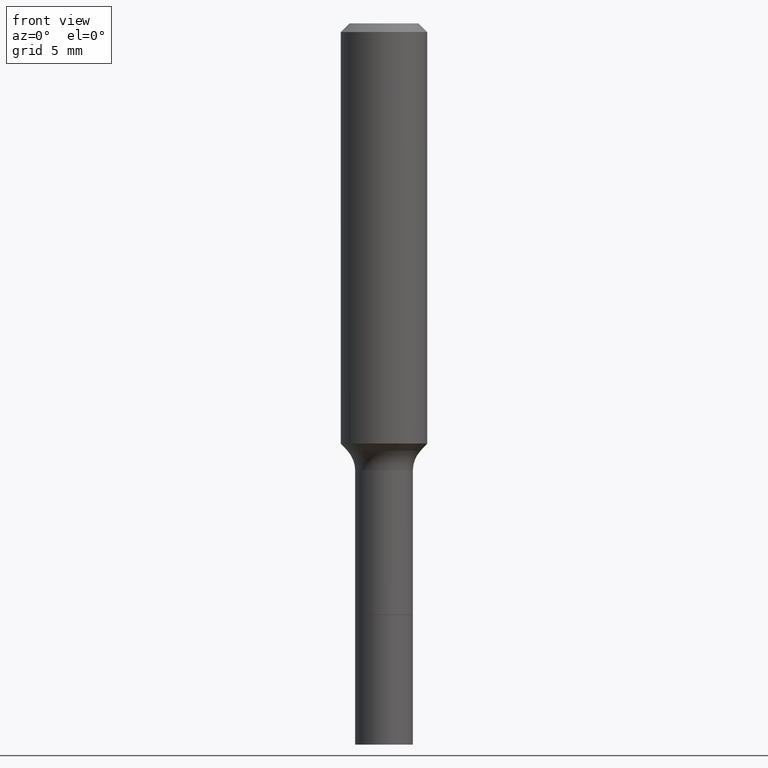
[diagram: clean part render]
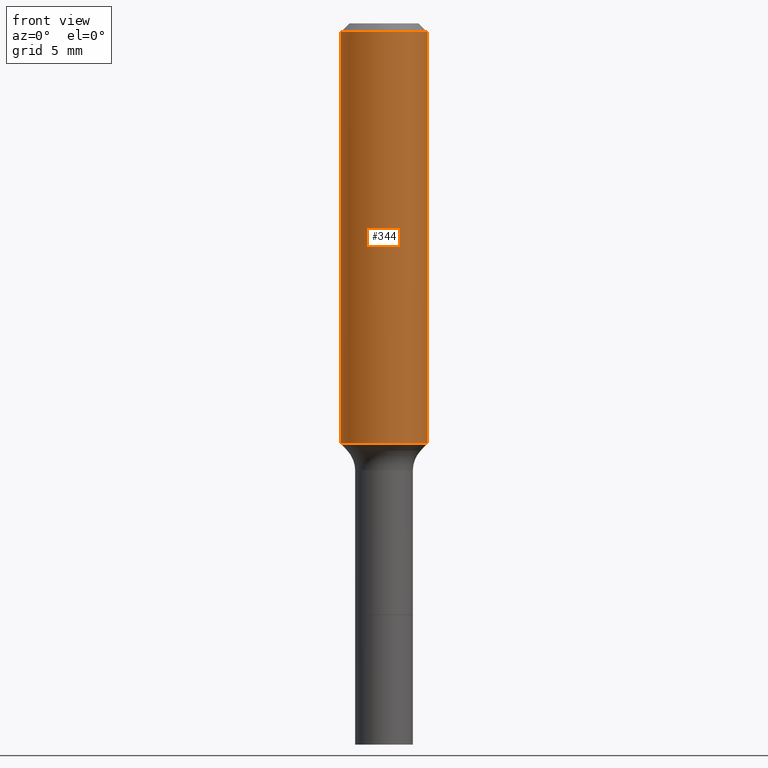
[diagram: same view with one face highlighted and labeled with its STEP entity id]
A machine part, front view. The second image highlights one B-rep face of the part: STEP entity #344.
In plain terms, the highlighted cylindrical surface (partial cylindrical patch) has radius 2.9997 mm, axis along (-0, 0, 1).
Its self-contained STEP definition (entity closure, byte-faithful):
#32 = DIRECTION ( 'NONE',  ( -2.445468806185136597E-29, 3.491481338843145583E-15, 1.000000000000000000 ) ) ;
#41 = DIRECTION ( 'NONE',  ( 1.000000000000000000, -6.982962677686266711E-15, 0.000000000000000000 ) ) ;
#46 = VERTEX_POINT ( 'NONE', #498 ) ;
#60 = CARTESIAN_POINT ( 'NONE',  ( 0.1181000000000000660, -8.246878922347485584E-16, 5.758764772215003944E-30 ) ) ;
#84 = CARTESIAN_POINT ( 'NONE',  ( 5.776197320209328408E-31, -8.246878922347560526E-17, -0.02362000000000014435 ) ) ;
#91 = DIRECTION ( 'NONE',  ( 1.000000000000000000, -6.982962677686269077E-15, 0.000000000000000000 ) ) ;
#112 = DIRECTION ( 'NONE',  ( -2.445468806185136877E-29, 3.491481338843145188E-15, 1.000000000000000000 ) ) ;
#120 = DIRECTION ( 'NONE',  ( -2.445468806185136597E-29, 3.491481338843145583E-15, 1.000000000000000000 ) ) ;
#144 = CARTESIAN_POINT ( 'NONE',  ( -0.1181000000000001354, -3.164843004536825664E-15, -1.146789453211333409 ) ) ;
#156 = EDGE_CURVE ( 'NONE', #243, #165, #292, .T. ) ;
#165 = VERTEX_POINT ( 'NONE', #454 ) ;
#170 = DIRECTION ( 'NONE',  ( -2.445468806185136597E-29, 3.491481338843145583E-15, 1.000000000000000000 ) ) ;
#223 = ORIENTED_EDGE ( 'NONE', *, *, #156, .F. ) ;
#234 = AXIS2_PLACEMENT_3D ( 'NONE', #84, #170, #41 ) ;
#243 = VERTEX_POINT ( 'NONE', #144 ) ;
#271 = CYLINDRICAL_SURFACE ( 'NONE', #418, 0.1181000000000000660 ) ;
#273 = LINE ( 'NONE', #60, #416 ) ;
#292 = LINE ( 'NONE', #452, #410 ) ;
#319 = CARTESIAN_POINT ( 'NONE',  ( 0.1180999999999999966, -9.071566814582237199E-16, -0.02362000000000014435 ) ) ;
#332 = DIRECTION ( 'NONE',  ( -2.445468806185136877E-29, 3.491481338843145188E-15, 1.000000000000000000 ) ) ;
#334 = EDGE_CURVE ( 'NONE', #46, #378, #273, .T. ) ;
#337 = AXIS2_PLACEMENT_3D ( 'NONE', #478, #120, #91 ) ;
#338 = FACE_OUTER_BOUND ( 'NONE', #395, .T. ) ;
#344 = ADVANCED_FACE ( 'NONE', ( #338 ), #271, .T. ) ;
#348 = CIRCLE ( 'NONE', #337, 0.1181000000000001354 ) ;
#349 = DIRECTION ( 'NONE',  ( 1.000000000000000000, -6.982962677686266711E-15, 4.876176775795936353E-29 ) ) ;
#364 = ORIENTED_EDGE ( 'NONE', *, *, #334, .T. ) ;
#378 = VERTEX_POINT ( 'NONE', #319 ) ;
#395 = EDGE_LOOP ( 'NONE', ( #223, #488, #364, #405 ) ) ;
#405 = ORIENTED_EDGE ( 'NONE', *, *, #494, .F. ) ;
#410 = VECTOR ( 'NONE', #332, 39.37007874015748143 ) ;
#412 = EDGE_CURVE ( 'NONE', #243, #46, #348, .T. ) ;
#416 = VECTOR ( 'NONE', #112, 39.37007874015748143 ) ;
#418 = AXIS2_PLACEMENT_3D ( 'NONE', #428, #32, #349 ) ;
#428 = CARTESIAN_POINT ( 'NONE',  ( 0.000000000000000000, 0.000000000000000000, 0.000000000000000000 ) ) ;
#452 = CARTESIAN_POINT ( 'NONE',  ( -0.1181000000000000660, 8.391509709326787887E-16, -5.809262341591047287E-30 ) ) ;
#454 = CARTESIAN_POINT ( 'NONE',  ( -0.1180999999999999966, -1.204080411413810673E-15, -0.02362000000000014435 ) ) ;
#478 = CARTESIAN_POINT ( 'NONE',  ( 2.804437835090424514E-29, -4.003993975469504650E-15, -1.146789453211333409 ) ) ;
#488 = ORIENTED_EDGE ( 'NONE', *, *, #412, .T. ) ;
#493 = CIRCLE ( 'NONE', #234, 0.1180999999999999966 ) ;
#494 = EDGE_CURVE ( 'NONE', #165, #378, #493, .T. ) ;
#498 = CARTESIAN_POINT ( 'NONE',  ( 0.1181000000000001354, -4.828681867704253702E-15, -1.146789453211333409 ) ) ;